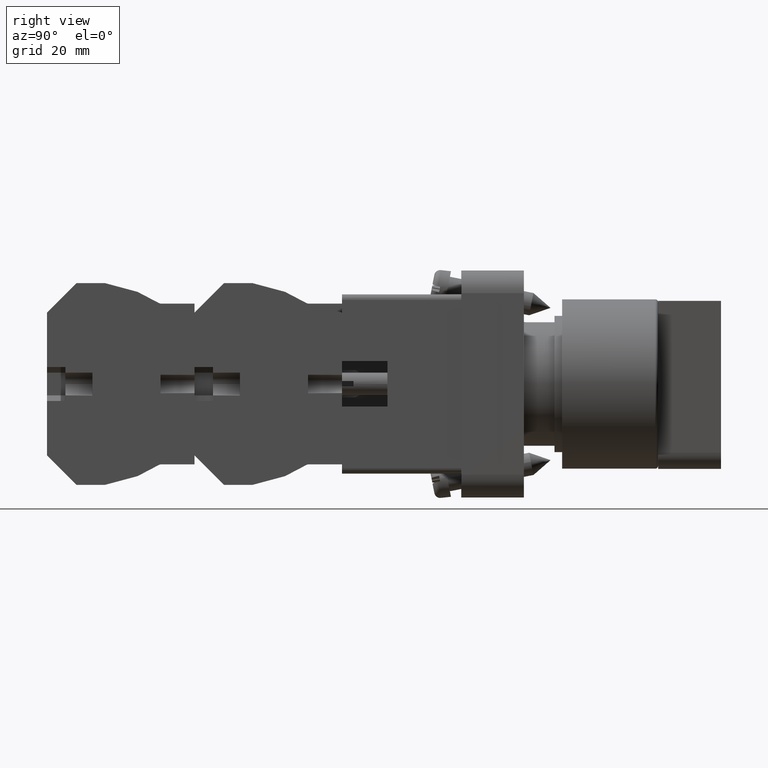
[diagram: clean part render]
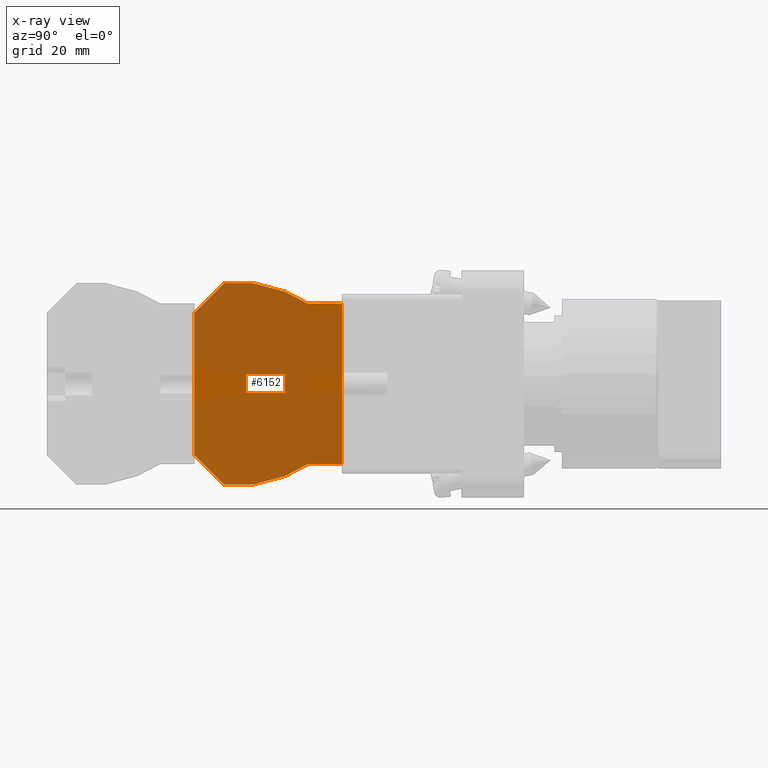
[diagram: x-ray — body ghosted, one internal face saturated and labeled with its STEP entity id]
A machine part, right view, then the same camera in x-ray: the body is ghosted and one INTERNAL B-rep face — a face not visible from any outside direction — is saturated and labeled: STEP entity #6152.
In plain terms, the highlighted planar face has unit normal (-1, 0, -0).
Its self-contained STEP definition (entity closure, byte-faithful):
#2 = VECTOR ( 'NONE', #8299, 39.37007874015748100 ) ;
#122 = ORIENTED_EDGE ( 'NONE', *, *, #1950, .T. ) ;
#180 = CARTESIAN_POINT ( 'NONE',  ( -0.3188976377952755800, 0.6995288218689655900, -0.6198296764213095900 ) ) ;
#295 = EDGE_CURVE ( 'NONE', #11874, #1744, #9747, .T. ) ;
#424 = EDGE_CURVE ( 'NONE', #11728, #691, #13144, .T. ) ;
#691 = VERTEX_POINT ( 'NONE', #8028 ) ;
#700 = DIRECTION ( 'NONE',  ( 0.0000000000000000000, 0.2588190451025197400, -0.9659258262890685300 ) ) ;
#725 = CARTESIAN_POINT ( 'NONE',  ( -0.3188976377952755800, -0.3385070961627993400, 0.1777201986726979200 ) ) ;
#900 = CARTESIAN_POINT ( 'NONE',  ( -0.3188976377952755800, -0.6995288218689645900, -0.6198296764213121500 ) ) ;
#985 = CARTESIAN_POINT ( 'NONE',  ( -0.3188976377952755800, -9.426696277809412200E-033, 6.829619984160658000E-017 ) ) ;
#1048 = VECTOR ( 'NONE', #700, 39.37007874015748100 ) ;
#1140 = DIRECTION ( 'NONE',  ( 0.0000000000000000000, 0.0000000000000000000, -1.000000000000000000 ) ) ;
#1508 = LINE ( 'NONE', #12883, #1048 ) ;
#1574 = CARTESIAN_POINT ( 'NONE',  ( -0.3188976377952755800, -0.4616588017403119900, 0.1237011031050369300 ) ) ;
#1632 = EDGE_CURVE ( 'NONE', #10386, #10514, #1508, .T. ) ;
#1744 = VERTEX_POINT ( 'NONE', #7949 ) ;
#1950 = EDGE_CURVE ( 'NONE', #14885, #2725, #3669, .T. ) ;
#2227 = LINE ( 'NONE', #985, #6367 ) ;
#2243 = DIRECTION ( 'NONE',  ( 0.0000000000000000000, 0.2588190451025187400, 0.9659258262890687600 ) ) ;
#2428 = EDGE_CURVE ( 'NONE', #691, #7156, #5166, .T. ) ;
#2466 = CARTESIAN_POINT ( 'NONE',  ( -0.3188976377952755800, 0.6393838401749257800, -0.3953655489188523900 ) ) ;
#2645 = EDGE_CURVE ( 'NONE', #13582, #15533, #7777, .T. ) ;
#2725 = VERTEX_POINT ( 'NONE', #6633 ) ;
#2729 = VECTOR ( 'NONE', #13893, 39.37007874015748900 ) ;
#2992 = DIRECTION ( 'NONE',  ( 0.0000000000000000000, 0.2588190451025217900, 0.9659258262890679800 ) ) ;
#3355 = ORIENTED_EDGE ( 'NONE', *, *, #15766, .T. ) ;
#3506 = LINE ( 'NONE', #9251, #16920 ) ;
#3647 = VECTOR ( 'NONE', #11678, 39.37007874015748100 ) ;
#3669 = LINE ( 'NONE', #11191, #10612 ) ;
#4034 = ORIENTED_EDGE ( 'NONE', *, *, #2428, .T. ) ;
#4340 = VERTEX_POINT ( 'NONE', #10306 ) ;
#4346 = LINE ( 'NONE', #16043, #7604 ) ;
#4396 = CARTESIAN_POINT ( 'NONE',  ( -0.3188976377952755800, 0.6995288218689655900, -0.8188976377952724700 ) ) ;
#4510 = EDGE_CURVE ( 'NONE', #4340, #10386, #3506, .T. ) ;
#4525 = ORIENTED_EDGE ( 'NONE', *, *, #424, .T. ) ;
#4591 = ORIENTED_EDGE ( 'NONE', *, *, #295, .T. ) ;
#5050 = AXIS2_PLACEMENT_3D ( 'NONE', #8079, #9466, #1140 ) ;
#5165 = ORIENTED_EDGE ( 'NONE', *, *, #14311, .T. ) ;
#5166 = LINE ( 'NONE', #1574, #12059 ) ;
#5289 = VECTOR ( 'NONE', #5874, 39.37007874015748100 ) ;
#5510 = VECTOR ( 'NONE', #14001, 39.37007874015748100 ) ;
#5520 = CARTESIAN_POINT ( 'NONE',  ( -0.3188976377952773600, -0.5577858387056763300, -19685.03937007874300 ) ) ;
#5541 = EDGE_LOOP ( 'NONE', ( #4591, #3355, #13023, #4525, #4034, #16176, #6413, #5575, #5165, #17664, #14912, #8227, #122, #16701 ) ) ;
#5575 = ORIENTED_EDGE ( 'NONE', *, *, #2645, .F. ) ;
#5874 = DIRECTION ( 'NONE',  ( 0.0000000000000000000, -1.000000000000000000, -1.518293247594904000E-015 ) ) ;
#6152 = ADVANCED_FACE ( 'NONE', ( #15021 ), #16367, .F. ) ;
#6215 = CARTESIAN_POINT ( 'NONE',  ( -0.3188976377952773600, 0.5577858387056756600, -19685.03937007874300 ) ) ;
#6367 = VECTOR ( 'NONE', #9328, 39.37007874015748100 ) ;
#6413 = ORIENTED_EDGE ( 'NONE', *, *, #6667, .T. ) ;
#6633 = CARTESIAN_POINT ( 'NONE',  ( -0.3188976377952755800, 0.4948044124201465600, -1.023622047244091600 ) ) ;
#6667 = EDGE_CURVE ( 'NONE', #15633, #15533, #2227, .T. ) ;
#6830 = EDGE_CURVE ( 'NONE', #7156, #15633, #14771, .T. ) ;
#7133 = DIRECTION ( 'NONE',  ( 0.0000000000000000000, -0.7071067811865474600, 0.7071067811865474600 ) ) ;
#7156 = VERTEX_POINT ( 'NONE', #16037 ) ;
#7604 = VECTOR ( 'NONE', #2243, 39.37007874015748900 ) ;
#7777 = LINE ( 'NONE', #6215, #3647 ) ;
#7927 = CARTESIAN_POINT ( 'NONE',  ( -0.3188976377952773600, 0.5577858387056756600, 0.0000000000000000000 ) ) ;
#7949 = CARTESIAN_POINT ( 'NONE',  ( -0.3188976377952755800, -0.6995288218689645900, -0.8188976377952748000 ) ) ;
#8028 = CARTESIAN_POINT ( 'NONE',  ( -0.3188976377952755800, -0.5604642668738533100, -0.2450459128388126900 ) ) ;
#8079 = CARTESIAN_POINT ( 'NONE',  ( -0.3188976377952755800, 0.0000000000000000000, 0.0000000000000000000 ) ) ;
#8227 = ORIENTED_EDGE ( 'NONE', *, *, #9624, .T. ) ;
#8299 = DIRECTION ( 'NONE',  ( 0.0000000000000000000, 0.0000000000000000000, 1.000000000000000000 ) ) ;
#8784 = CARTESIAN_POINT ( 'NONE',  ( -0.3188976377952755800, -0.6393838401749258900, -0.3953655489188578900 ) ) ;
#9251 = CARTESIAN_POINT ( 'NONE',  ( -0.3188976377952755800, 0.3385070961627866800, 0.1777201986726998100 ) ) ;
#9273 = EDGE_CURVE ( 'NONE', #2725, #11874, #12175, .T. ) ;
#9291 = VECTOR ( 'NONE', #7133, 39.37007874015748900 ) ;
#9328 = DIRECTION ( 'NONE',  ( 0.0000000000000000000, 1.000000000000000000, 1.380266588722641500E-016 ) ) ;
#9363 = CARTESIAN_POINT ( 'NONE',  ( -0.3188976377952755800, 0.6995288218689655900, 0.0000000000000000000 ) ) ;
#9466 = DIRECTION ( 'NONE',  ( 1.000000000000000000, -0.0000000000000000000, 0.0000000000000000000 ) ) ;
#9478 = CARTESIAN_POINT ( 'NONE',  ( -0.3188976377952773600, -0.5577858387056763300, 0.0000000000000000000 ) ) ;
#9624 = EDGE_CURVE ( 'NONE', #10514, #14885, #14786, .T. ) ;
#9747 = LINE ( 'NONE', #13865, #9291 ) ;
#10257 = CARTESIAN_POINT ( 'NONE',  ( -0.3188976377952755800, 0.5577858387056756600, -0.2350498828307547600 ) ) ;
#10306 = CARTESIAN_POINT ( 'NONE',  ( -0.3188976377952755800, 0.5604642668738515400, -0.2450459128388111600 ) ) ;
#10386 = VERTEX_POINT ( 'NONE', #2466 ) ;
#10514 = VERTEX_POINT ( 'NONE', #180 ) ;
#10612 = VECTOR ( 'NONE', #14132, 39.37007874015748900 ) ;
#10759 = DIRECTION ( 'NONE',  ( 0.0000000000000000000, 0.0000000000000000000, -1.000000000000000000 ) ) ;
#11191 = CARTESIAN_POINT ( 'NONE',  ( -0.3188976377952755800, 0.7592132298321191400, -0.7592132298321189200 ) ) ;
#11200 = CARTESIAN_POINT ( 'NONE',  ( -0.3188976377952755800, 0.4616588017403134300, 0.1237011031050346800 ) ) ;
#11678 = DIRECTION ( 'NONE',  ( 0.0000000000000000000, 0.0000000000000000000, 1.000000000000000000 ) ) ;
#11728 = VERTEX_POINT ( 'NONE', #8784 ) ;
#11874 = VERTEX_POINT ( 'NONE', #13258 ) ;
#12059 = VECTOR ( 'NONE', #2992, 39.37007874015748100 ) ;
#12175 = LINE ( 'NONE', #16931, #5289 ) ;
#12591 = CARTESIAN_POINT ( 'NONE',  ( -0.3188976377952755800, -0.6995288218689645900, 0.0000000000000000000 ) ) ;
#12717 = VECTOR ( 'NONE', #14783, 39.37007874015748100 ) ;
#12883 = CARTESIAN_POINT ( 'NONE',  ( -0.3188976377952755800, 0.4977118570381181600, 0.1333614901567575800 ) ) ;
#13023 = ORIENTED_EDGE ( 'NONE', *, *, #17942, .T. ) ;
#13144 = LINE ( 'NONE', #725, #12717 ) ;
#13258 = CARTESIAN_POINT ( 'NONE',  ( -0.3188976377952755800, -0.4948044124201464400, -1.023622047244092900 ) ) ;
#13582 = VERTEX_POINT ( 'NONE', #10257 ) ;
#13742 = LINE ( 'NONE', #11200, #2729 ) ;
#13865 = CARTESIAN_POINT ( 'NONE',  ( -0.3188976377952755800, -0.7592132298321195800, -0.7592132298321195800 ) ) ;
#13893 = DIRECTION ( 'NONE',  ( 0.0000000000000000000, 0.2588190451025166300, -0.9659258262890693100 ) ) ;
#14001 = DIRECTION ( 'NONE',  ( -0.0000000000000000000, 0.0000000000000000000, 1.000000000000000000 ) ) ;
#14132 = DIRECTION ( 'NONE',  ( 0.0000000000000000000, -0.7071067811865473500, -0.7071067811865475700 ) ) ;
#14311 = EDGE_CURVE ( 'NONE', #13582, #4340, #13742, .T. ) ;
#14372 = VECTOR ( 'NONE', #10759, 39.37007874015748100 ) ;
#14622 = VERTEX_POINT ( 'NONE', #900 ) ;
#14743 = DIRECTION ( 'NONE',  ( 0.0000000000000000000, 0.4648420457246347200, -0.8853936257544079400 ) ) ;
#14771 = LINE ( 'NONE', #5520, #2 ) ;
#14783 = DIRECTION ( 'NONE',  ( 0.0000000000000000000, 0.4648420457246171800, 0.8853936257544171600 ) ) ;
#14786 = LINE ( 'NONE', #9363, #14372 ) ;
#14885 = VERTEX_POINT ( 'NONE', #4396 ) ;
#14912 = ORIENTED_EDGE ( 'NONE', *, *, #1632, .T. ) ;
#15021 = FACE_OUTER_BOUND ( 'NONE', #5541, .T. ) ;
#15533 = VERTEX_POINT ( 'NONE', #7927 ) ;
#15633 = VERTEX_POINT ( 'NONE', #9478 ) ;
#15766 = EDGE_CURVE ( 'NONE', #1744, #14622, #16535, .T. ) ;
#16037 = CARTESIAN_POINT ( 'NONE',  ( -0.3188976377952773600, -0.5577858387056763300, -0.2350498828300582600 ) ) ;
#16043 = CARTESIAN_POINT ( 'NONE',  ( -0.3188976377952755800, -0.4977118570381174900, 0.1333614901567568600 ) ) ;
#16176 = ORIENTED_EDGE ( 'NONE', *, *, #6830, .T. ) ;
#16367 = PLANE ( 'NONE',  #5050 ) ;
#16535 = LINE ( 'NONE', #12591, #5510 ) ;
#16701 = ORIENTED_EDGE ( 'NONE', *, *, #9273, .T. ) ;
#16920 = VECTOR ( 'NONE', #14743, 39.37007874015748900 ) ;
#16931 = CARTESIAN_POINT ( 'NONE',  ( -0.3188976377952755800, 1.554158442419976800E-015, -1.023622047244092200 ) ) ;
#17664 = ORIENTED_EDGE ( 'NONE', *, *, #4510, .T. ) ;
#17942 = EDGE_CURVE ( 'NONE', #14622, #11728, #4346, .T. ) ;